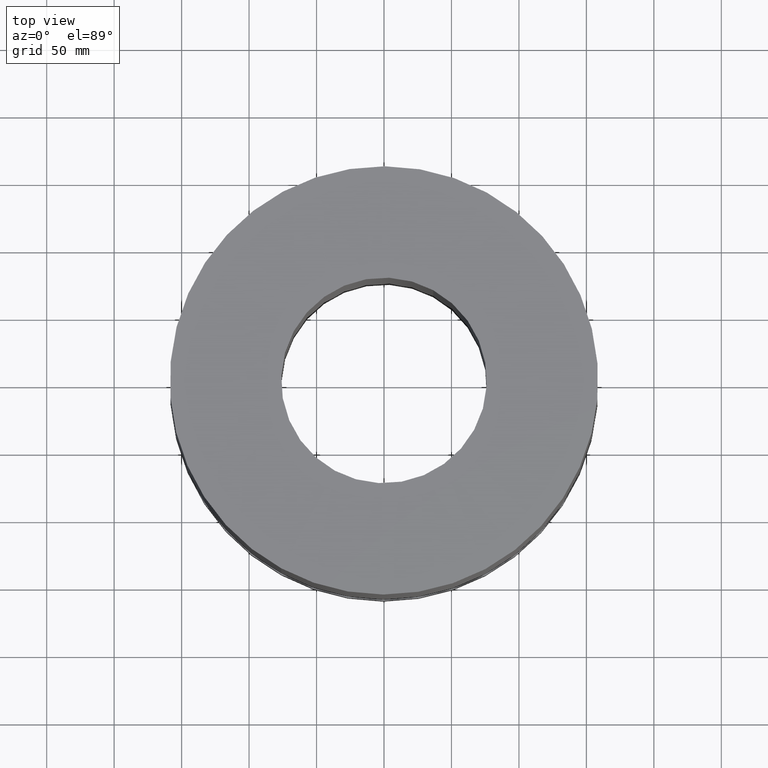
[diagram: clean part render]
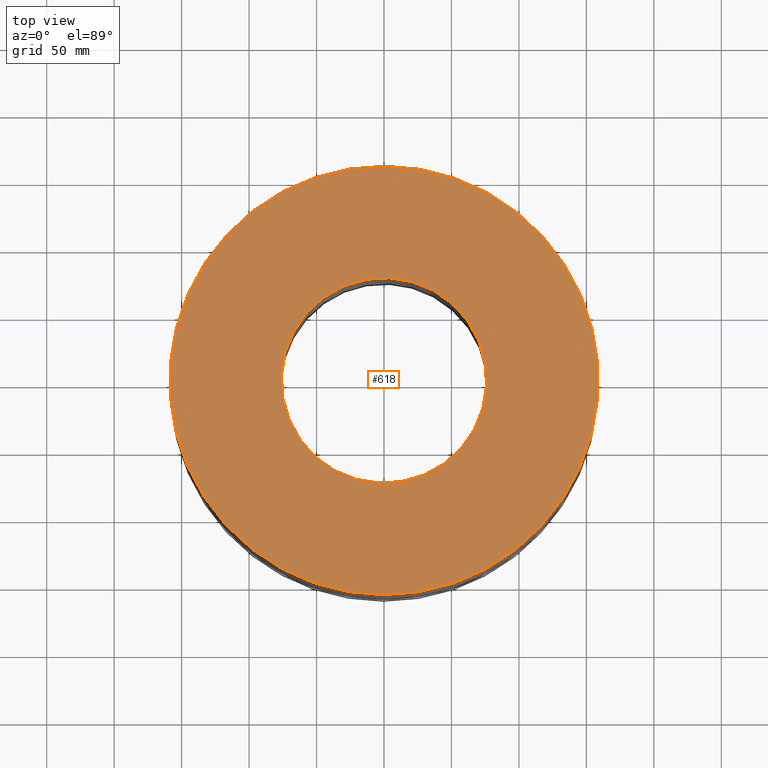
[diagram: same view with one face highlighted and labeled with its STEP entity id]
A machine part, top view. The second image highlights one B-rep face of the part: STEP entity #618.
In plain terms, the highlighted planar face has unit normal (0, 0, -1).
Its self-contained STEP definition (entity closure, byte-faithful):
#562=AXIS2_PLACEMENT_3D('Circle Axis2P3D',#560,#561,$) ;
#581=AXIS2_PLACEMENT_3D('Circle Axis2P3D',#579,#580,$) ;
#594=AXIS2_PLACEMENT_3D('Plane Axis2P3D',#591,#592,#593) ;
#602=AXIS2_PLACEMENT_3D('Circle Axis2P3D',#600,#601,$) ;
#611=AXIS2_PLACEMENT_3D('Circle Axis2P3D',#609,#610,$) ;
#557=CARTESIAN_POINT('Vertex',(2.99640961629,5.48489101184,11.9375)) ;
#560=CARTESIAN_POINT('Axis2P3D Location',(0.,0.,11.9375)) ;
#564=CARTESIAN_POINT('Vertex',(-2.99640961629,-5.48489101184,11.9375)) ;
#579=CARTESIAN_POINT('Axis2P3D Location',(0.,0.,11.9375)) ;
#591=CARTESIAN_POINT('Axis2P3D Location',(0.,6.25000000003,11.9375)) ;
#600=CARTESIAN_POINT('Axis2P3D Location',(0.,0.,11.9375)) ;
#604=CARTESIAN_POINT('Vertex',(-1.43827661582,-2.63274768568,11.9375)) ;
#606=CARTESIAN_POINT('Vertex',(1.43827661582,2.63274768568,11.9375)) ;
#609=CARTESIAN_POINT('Axis2P3D Location',(0.,0.,11.9375)) ;
#561=DIRECTION('Axis2P3D Direction',(0.,0.,-0.0393700787402)) ;
#580=DIRECTION('Axis2P3D Direction',(0.,0.,-0.0393700787402)) ;
#592=DIRECTION('Axis2P3D Direction',(0.,0.,-0.0393700787402)) ;
#593=DIRECTION('Axis2P3D XDirection',(0.0393700787402,0.,0.)) ;
#601=DIRECTION('Axis2P3D Direction',(0.,0.,-0.0393700787402)) ;
#610=DIRECTION('Axis2P3D Direction',(0.,0.,-0.0393700787402)) ;
#597=ORIENTED_EDGE('',*,*,#566,.F.) ;
#598=ORIENTED_EDGE('',*,*,#583,.F.) ;
#615=ORIENTED_EDGE('',*,*,#608,.T.) ;
#616=ORIENTED_EDGE('',*,*,#613,.T.) ;
#617=FACE_BOUND('',#614,.T.) ;
#618=ADVANCED_FACE('PartBody',(#599,#617),#595,.F.) ;
#563=CIRCLE('generated circle',#562,6.25000000003) ;
#582=CIRCLE('generated circle',#581,6.25000000003) ;
#603=CIRCLE('generated circle',#602,3.00000000001) ;
#612=CIRCLE('generated circle',#611,3.00000000001) ;
#566=EDGE_CURVE('',#558,#565,#563,.T.) ;
#583=EDGE_CURVE('',#565,#558,#582,.T.) ;
#608=EDGE_CURVE('',#605,#607,#603,.T.) ;
#613=EDGE_CURVE('',#607,#605,#612,.T.) ;
#596=EDGE_LOOP('',(#597,#598)) ;
#614=EDGE_LOOP('',(#615,#616)) ;
#599=FACE_OUTER_BOUND('',#596,.T.) ;
#595=PLANE('',#594) ;
#558=VERTEX_POINT('',#557) ;
#565=VERTEX_POINT('',#564) ;
#605=VERTEX_POINT('',#604) ;
#607=VERTEX_POINT('',#606) ;